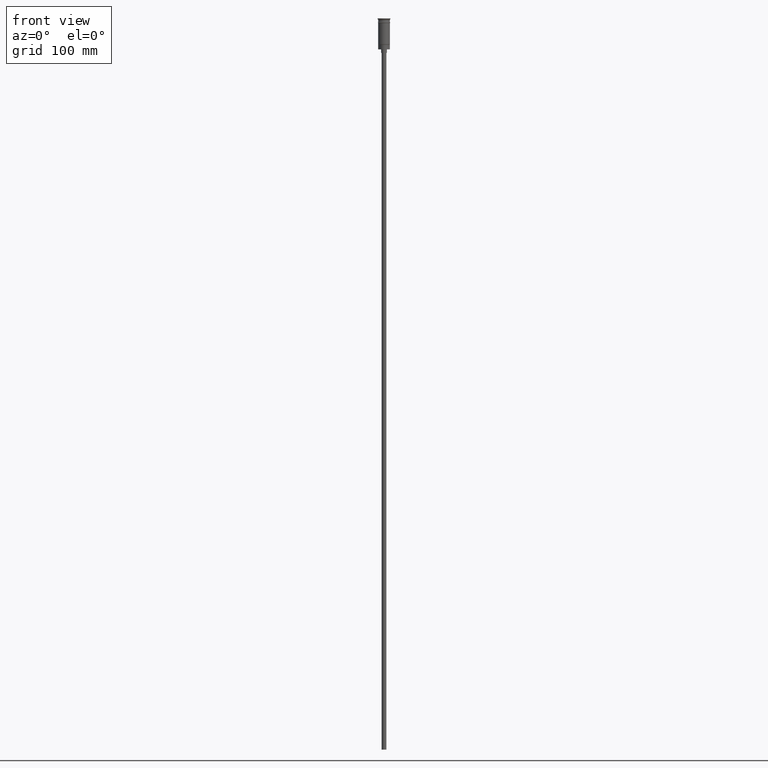
[diagram: clean part render]
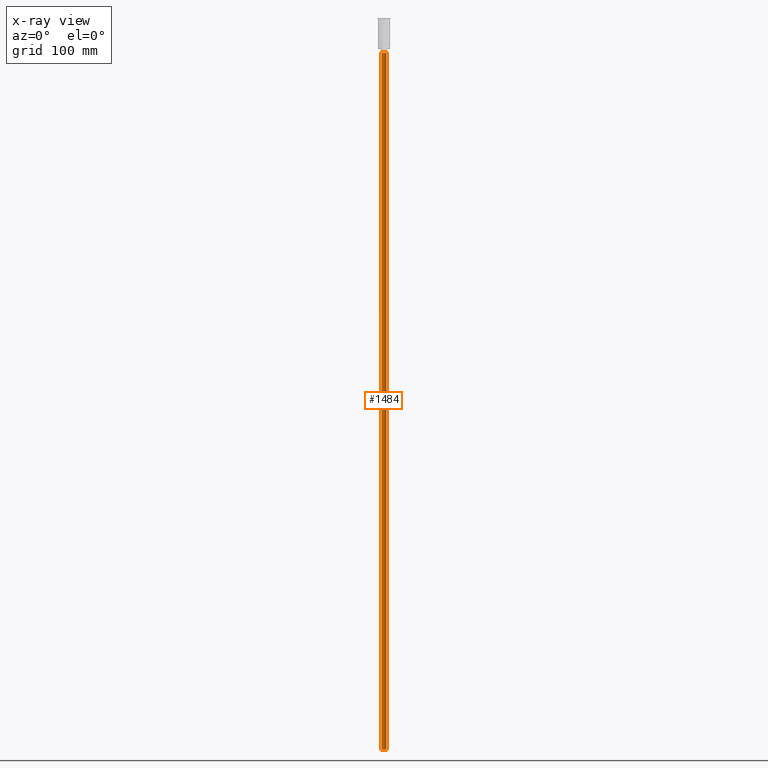
[diagram: x-ray — body ghosted, one internal face saturated and labeled with its STEP entity id]
A machine part, front view, then the same camera in x-ray: the body is ghosted and one INTERNAL B-rep face — a face not visible from any outside direction — is saturated and labeled: STEP entity #1484.
In plain terms, the highlighted cylindrical surface (edge-blend (fillet) strip) has radius 2 mm, axis along (-0, -0, 1).
Its self-contained STEP definition (entity closure, byte-faithful):
#56 = DIRECTION ( 'NONE',  ( -0.000000000000000000, -0.000000000000000000, 1.000000000000000000 ) ) ;
#72 = DIRECTION ( 'NONE',  ( -0.000000000000000000, -0.000000000000000000, 1.000000000000000000 ) ) ;
#124 = DIRECTION ( 'NONE',  ( 0.000000000000000000, 0.000000000000000000, -1.000000000000000000 ) ) ;
#340 = DIRECTION ( 'NONE',  ( -0.000000000000000000, -0.000000000000000000, 1.000000000000000000 ) ) ;
#346 = CARTESIAN_POINT ( 'NONE',  ( -2.000000000000000000, 2.449293598294706414E-16, -29.50000000000000000 ) ) ;
#377 = ORIENTED_EDGE ( 'NONE', *, *, #621, .T. ) ;
#390 = AXIS2_PLACEMENT_3D ( 'NONE', #1198, #340, #1553 ) ;
#418 = CARTESIAN_POINT ( 'NONE',  ( 0.000000000000000000, 0.000000000000000000, -626.5000000000000000 ) ) ;
#456 = CARTESIAN_POINT ( 'NONE',  ( -2.000000000000000000, 2.449293598294706414E-16, -626.5000000000000000 ) ) ;
#468 = AXIS2_PLACEMENT_3D ( 'NONE', #1602, #124, #1482 ) ;
#478 = ORIENTED_EDGE ( 'NONE', *, *, #978, .F. ) ;
#480 = EDGE_CURVE ( 'NONE', #1451, #920, #1325, .T. ) ;
#591 = EDGE_CURVE ( 'NONE', #1562, #920, #829, .T. ) ;
#621 = EDGE_CURVE ( 'NONE', #1582, #1562, #1574, .T. ) ;
#711 = CARTESIAN_POINT ( 'NONE',  ( 2.000000000000000000, 0.000000000000000000, -626.5000000000000000 ) ) ;
#735 = AXIS2_PLACEMENT_3D ( 'NONE', #418, #1147, #1502 ) ;
#777 = EDGE_LOOP ( 'NONE', ( #478, #377, #868, #1457 ) ) ;
#829 = CIRCLE ( 'NONE', #468, 2.000000000000000000 ) ;
#868 = ORIENTED_EDGE ( 'NONE', *, *, #591, .T. ) ;
#920 = VERTEX_POINT ( 'NONE', #1155 ) ;
#978 = EDGE_CURVE ( 'NONE', #1582, #1451, #1406, .T. ) ;
#1054 = FACE_OUTER_BOUND ( 'NONE', #777, .T. ) ;
#1061 = VECTOR ( 'NONE', #72, 1000.000000000000000 ) ;
#1147 = DIRECTION ( 'NONE',  ( 0.000000000000000000, 0.000000000000000000, -1.000000000000000000 ) ) ;
#1155 = CARTESIAN_POINT ( 'NONE',  ( 2.000000000000000000, 0.000000000000000000, -29.50000000000000000 ) ) ;
#1198 = CARTESIAN_POINT ( 'NONE',  ( 0.000000000000000000, 0.000000000000000000, -626.5000000000000000 ) ) ;
#1212 = CARTESIAN_POINT ( 'NONE',  ( 2.000000000000000000, 0.000000000000000000, -626.5000000000000000 ) ) ;
#1325 = LINE ( 'NONE', #1212, #1061 ) ;
#1406 = CIRCLE ( 'NONE', #735, 2.000000000000000000 ) ;
#1451 = VERTEX_POINT ( 'NONE', #711 ) ;
#1457 = ORIENTED_EDGE ( 'NONE', *, *, #480, .F. ) ;
#1482 = DIRECTION ( 'NONE',  ( -1.000000000000000000, 0.000000000000000000, 0.000000000000000000 ) ) ;
#1484 = ADVANCED_FACE ( 'NONE', ( #1054 ), #1545, .T. ) ;
#1502 = DIRECTION ( 'NONE',  ( -1.000000000000000000, 0.000000000000000000, 0.000000000000000000 ) ) ;
#1545 = CYLINDRICAL_SURFACE ( 'NONE', #390, 2.000000000000000000 ) ;
#1553 = DIRECTION ( 'NONE',  ( 1.000000000000000000, 0.000000000000000000, 0.000000000000000000 ) ) ;
#1562 = VERTEX_POINT ( 'NONE', #346 ) ;
#1568 = VECTOR ( 'NONE', #56, 1000.000000000000000 ) ;
#1570 = CARTESIAN_POINT ( 'NONE',  ( -2.000000000000000000, 2.449293598294706414E-16, -626.5000000000000000 ) ) ;
#1574 = LINE ( 'NONE', #456, #1568 ) ;
#1582 = VERTEX_POINT ( 'NONE', #1570 ) ;
#1602 = CARTESIAN_POINT ( 'NONE',  ( 0.000000000000000000, 0.000000000000000000, -29.50000000000000000 ) ) ;